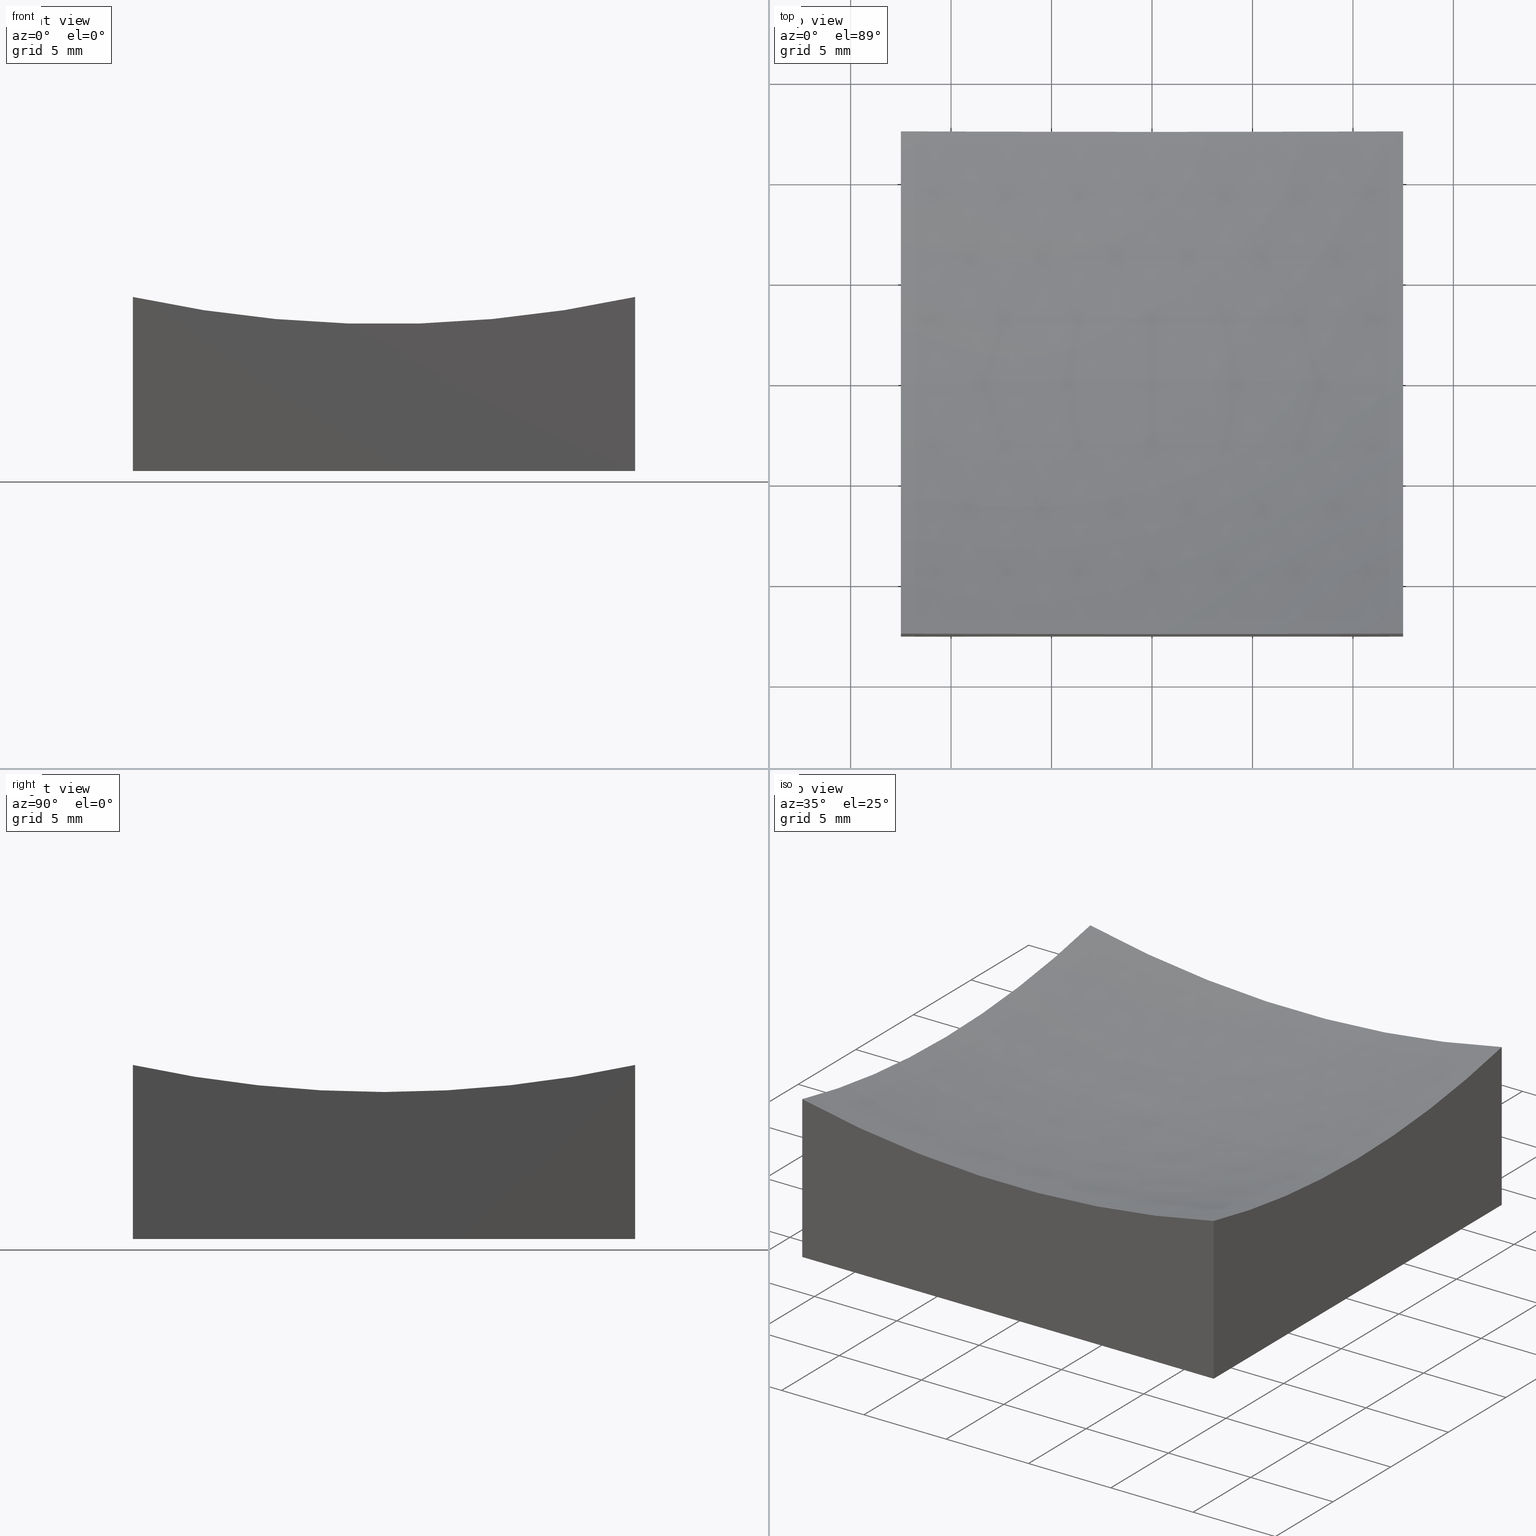
[diagram: canonical four-view strip — front | top / right | iso, engineering-drawing reading convention]
A machine part, canonical four-view strip (front | top / right | iso — engineering-drawing reading convention). The complete STEP part file that produces these views, byte-faithful:
ISO-10303-21;
HEADER;
FILE_DESCRIPTION (( 'STEP AP214' ),
    '1' );
FILE_NAME ('270033.STEP',
    '2020-06-05T05:57:28',
    ( '' ),
    ( '' ),
    'SwSTEP 2.0',
    'SolidWorks 2019',
    '' );
FILE_SCHEMA (( 'AUTOMOTIVE_DESIGN' ));
ENDSEC;

DATA;
#1 = DIRECTION ( 'NONE',  ( -0.0000000000000000000, -0.0000000000000000000, -1.000000000000000000 ) ) ;
#2 = FILL_AREA_STYLE ('',( #34 ) ) ;
#3 =( NAMED_UNIT ( * ) PLANE_ANGLE_UNIT ( ) SI_UNIT ( $, .RADIAN. ) );
#4 = DIRECTION ( 'NONE',  ( 1.000000000000000000, 1.387778780781445676E-16, -0.0000000000000000000 ) ) ;
#5 =( NAMED_UNIT ( * ) PLANE_ANGLE_UNIT ( ) SI_UNIT ( $, .RADIAN. ) );
#6 = APPLICATION_CONTEXT ( 'automotive_design' ) ;
#7 = ORIENTED_EDGE ( 'NONE', *, *, #137, .F. ) ;
#8 = EDGE_CURVE ( 'NONE', #87, #227, #148, .T. ) ;
#9 = SPHERICAL_SURFACE ( 'NONE', #64, 60.00000000000000000 ) ;
#10 = AXIS2_PLACEMENT_3D ( 'NONE', #235, #80, #108 ) ;
#11 = CARTESIAN_POINT ( 'NONE',  ( -12.50000000000000000, 12.50000000000000000, 0.0000000000000000000 ) ) ;
#12 = EDGE_LOOP ( 'NONE', ( #48, #184, #168, #128 ) ) ;
#13 = DIRECTION ( 'NONE',  ( -0.0000000000000000000, -0.0000000000000000000, -1.000000000000000000 ) ) ;
#14 = CIRCLE ( 'NONE', #10, 58.68347297152751452 ) ;
#15 = DIRECTION ( 'NONE',  ( 1.000000000000000000, 1.387778780781445676E-16, -0.0000000000000000000 ) ) ;
#16 = DIRECTION ( 'NONE',  ( 0.0000000000000000000, 0.0000000000000000000, 1.000000000000000000 ) ) ;
#17 = CARTESIAN_POINT ( 'NONE',  ( -12.49999999999999822, -1.734723475976808278E-15, 66.00000000000000000 ) ) ;
#18 = EDGE_CURVE ( 'NONE', #227, #67, #65, .T. ) ;
#19 = PRODUCT ( '270033', '270033', '', ( #73 ) ) ;
#20 = AXIS2_PLACEMENT_3D ( 'NONE', #154, #209, #134 ) ;
#21 =( LENGTH_UNIT ( ) NAMED_UNIT ( * ) SI_UNIT ( .MILLI., .METRE. ) );
#22 = FACE_OUTER_BOUND ( 'NONE', #12, .T. ) ;
#23 = DIRECTION ( 'NONE',  ( -0.0000000000000000000, 1.000000000000000000, 0.0000000000000000000 ) ) ;
#24 = MECHANICAL_DESIGN_GEOMETRIC_PRESENTATION_REPRESENTATION (  '', ( #241 ), #161 ) ;
#25 = CARTESIAN_POINT ( 'NONE',  ( 12.50000000000000000, 12.50000000000000000, 0.0000000000000000000 ) ) ;
#26 = PRESENTATION_LAYER_ASSIGNMENT (  '', '', ( #241 ) ) ;
#27 = ORIENTED_EDGE ( 'NONE', *, *, #44, .T. ) ;
#28 = ORIENTED_EDGE ( 'NONE', *, *, #200, .T. ) ;
#29 = FACE_OUTER_BOUND ( 'NONE', #89, .T. ) ;
#30 = ORIENTED_EDGE ( 'NONE', *, *, #92, .F. ) ;
#31 = CARTESIAN_POINT ( 'NONE',  ( 12.50000000000000000, 12.50000000000000000, 20.00000000000000000 ) ) ;
#32 = AXIS2_PLACEMENT_3D ( 'NONE', #160, #15, #171 ) ;
#33 = DIRECTION ( 'NONE',  ( 0.0000000000000000000, 0.0000000000000000000, -1.000000000000000000 ) ) ;
#34 = FILL_AREA_STYLE_COLOUR ( '', #109 ) ;
#35 = ADVANCED_FACE ( 'NONE', ( #29 ), #9, .F. ) ;
#36 = CARTESIAN_POINT ( 'NONE',  ( 12.50000000000000000, 12.50000000000000000, 20.00000000000000000 ) ) ;
#37 = DIRECTION ( 'NONE',  ( -0.0000000000000000000, -0.0000000000000000000, -1.000000000000000000 ) ) ;
#38 = APPLICATION_CONTEXT ( 'automotive_design' ) ;
#39 = CLOSED_SHELL ( 'NONE', ( #35, #53, #243, #88, #218, #149, #226 ) ) ;
#40 = CARTESIAN_POINT ( 'NONE',  ( 12.50000000000000355, -12.50000000000000000, 0.0000000000000000000 ) ) ;
#41 = CARTESIAN_POINT ( 'NONE',  ( -12.49999999999999645, -12.50000000000000000, 0.0000000000000000000 ) ) ;
#42 = FACE_OUTER_BOUND ( 'NONE', #236, .T. ) ;
#43 = VECTOR ( 'NONE', #111, 1000.000000000000000 ) ;
#44 = EDGE_CURVE ( 'NONE', #87, #223, #164, .T. ) ;
#45 = FACE_OUTER_BOUND ( 'NONE', #144, .T. ) ;
#46 = CARTESIAN_POINT ( 'NONE',  ( 12.50000000000000000, 12.50000000000000000, 0.0000000000000000000 ) ) ;
#47 = ORIENTED_EDGE ( 'NONE', *, *, #18, .F. ) ;
#48 = ORIENTED_EDGE ( 'NONE', *, *, #107, .F. ) ;
#49 = AXIS2_PLACEMENT_3D ( 'NONE', #17, #234, #247 ) ;
#50 = ORIENTED_EDGE ( 'NONE', *, *, #44, .F. ) ;
#51 = LINE ( 'NONE', #77, #166 ) ;
#52 = FILL_AREA_STYLE ('',( #159 ) ) ;
#53 = ADVANCED_FACE ( 'NONE', ( #45 ), #242, .T. ) ;
#54 = STYLED_ITEM ( 'NONE', ( #71 ), #224 ) ;
#55 = FACE_OUTER_BOUND ( 'NONE', #225, .T. ) ;
#56 = UNCERTAINTY_MEASURE_WITH_UNIT (LENGTH_MEASURE( 1.000000000000000082E-05 ), #21, 'distance_accuracy_value', 'NONE');
#57 = CARTESIAN_POINT ( 'NONE',  ( 8.278698348036925657E-15, 0.0000000000000000000, 6.000000000000005329 ) ) ;
#58 =( LENGTH_UNIT ( ) NAMED_UNIT ( * ) SI_UNIT ( .MILLI., .METRE. ) );
#59 = DIRECTION ( 'NONE',  ( 1.000000000000000000, 1.387778780781445676E-16, -0.0000000000000000000 ) ) ;
#60 = CIRCLE ( 'NONE', #202, 58.68347297152751452 ) ;
#61 = ORIENTED_EDGE ( 'NONE', *, *, #62, .T. ) ;
#62 = EDGE_CURVE ( 'NONE', #245, #238, #185, .T. ) ;
#63 = AXIS2_PLACEMENT_3D ( 'NONE', #192, #211, #78 ) ;
#64 = AXIS2_PLACEMENT_3D ( 'NONE', #94, #110, #126 ) ;
#65 = LINE ( 'NONE', #46, #43 ) ;
#66 = DIRECTION ( 'NONE',  ( 0.0000000000000000000, 1.000000000000000000, 0.0000000000000000000 ) ) ;
#67 = VERTEX_POINT ( 'NONE', #40 ) ;
#68 = ORIENTED_EDGE ( 'NONE', *, *, #84, .F. ) ;
#69 = PRODUCT_DEFINITION ( 'δ֪', '', #117, #91 ) ;
#70 =( GEOMETRIC_REPRESENTATION_CONTEXT ( 3 ) GLOBAL_UNCERTAINTY_ASSIGNED_CONTEXT ( ( #188 ) ) GLOBAL_UNIT_ASSIGNED_CONTEXT ( ( #219, #3, #139 ) ) REPRESENTATION_CONTEXT ( 'NONE', 'WORKASPACE' ) );
#71 = PRESENTATION_STYLE_ASSIGNMENT (( #233 ) ) ;
#72 = LINE ( 'NONE', #74, #86 ) ;
#73 = PRODUCT_CONTEXT ( 'NONE', #6, 'mechanical' ) ;
#74 = CARTESIAN_POINT ( 'NONE',  ( -12.49999999999999645, -12.50000000000000000, 20.00000000000000000 ) ) ;
#75 = SURFACE_STYLE_USAGE ( .BOTH. , #177 ) ;
#76 = AXIS2_PLACEMENT_3D ( 'NONE', #217, #16, #172 ) ;
#77 = CARTESIAN_POINT ( 'NONE',  ( -12.50000000000000000, 12.50000000000000000, 20.00000000000000000 ) ) ;
#78 = DIRECTION ( 'NONE',  ( -1.478034093873817962E-16, 1.000000000000000000, 0.0000000000000000000 ) ) ;
#79 =( NAMED_UNIT ( * ) SI_UNIT ( $, .STERADIAN. ) SOLID_ANGLE_UNIT ( ) );
#80 = DIRECTION ( 'NONE',  ( 0.0000000000000000000, 1.000000000000000000, 0.0000000000000000000 ) ) ;
#81 = COLOUR_RGB ( '',1.000000000000000000, 1.000000000000000000, 1.000000000000000000 ) ;
#82 = DIRECTION ( 'NONE',  ( -1.387778780781445676E-16, 1.000000000000000000, 0.0000000000000000000 ) ) ;
#83 = CARTESIAN_POINT ( 'NONE',  ( 12.50000000000000355, -12.50000000000000000, 8.663275294101428159 ) ) ;
#84 = EDGE_CURVE ( 'NONE', #201, #187, #60, .T. ) ;
#85 = ORIENTED_EDGE ( 'NONE', *, *, #137, .T. ) ;
#86 = VECTOR ( 'NONE', #1, 1000.000000000000000 ) ;
#87 = VERTEX_POINT ( 'NONE', #190 ) ;
#88 = ADVANCED_FACE ( 'NONE', ( #22 ), #118, .F. ) ;
#89 = EDGE_LOOP ( 'NONE', ( #151, #28, #68, #205, #199 ) ) ;
#90 = ORIENTED_EDGE ( 'NONE', *, *, #102, .T. ) ;
#91 = PRODUCT_DEFINITION_CONTEXT ( 'detailed design', #38, 'design' ) ;
#92 = EDGE_CURVE ( 'NONE', #229, #240, #206, .T. ) ;
#93 = ORIENTED_EDGE ( 'NONE', *, *, #181, .T. ) ;
#94 = CARTESIAN_POINT ( 'NONE',  ( 8.082668874372532400E-15, 0.0000000000000000000, 66.00000000000000000 ) ) ;
#95 = AXIS2_PLACEMENT_3D ( 'NONE', #36, #197, #119 ) ;
#96 = SURFACE_SIDE_STYLE ('',( #194 ) ) ;
#97 = DIRECTION ( 'NONE',  ( 1.000000000000000000, 0.0000000000000000000, 0.0000000000000000000 ) ) ;
#98 = SHAPE_DEFINITION_REPRESENTATION ( #103, #193 ) ;
#99 = APPLICATION_PROTOCOL_DEFINITION ( 'draft international standard', 'automotive_design', 1998, #6 ) ;
#100 = AXIS2_PLACEMENT_3D ( 'NONE', #136, #33, #251 ) ;
#101 = CARTESIAN_POINT ( 'NONE',  ( -12.49999999999999822, -1.734723475976808278E-15, 66.00000000000000000 ) ) ;
#102 = EDGE_CURVE ( 'NONE', #245, #227, #153, .T. ) ;
#103 = PRODUCT_DEFINITION_SHAPE ( 'NONE', 'NONE',  #69 ) ;
#104 = CARTESIAN_POINT ( 'NONE',  ( 12.50000000000000355, -12.50000000000000000, 20.00000000000000000 ) ) ;
#105 = CARTESIAN_POINT ( 'NONE',  ( 12.50000000000000178, 0.0000000000000000000, 7.316527028472495253 ) ) ;
#106 = CIRCLE ( 'NONE', #121, 60.00000000000000000 ) ;
#107 = EDGE_CURVE ( 'NONE', #229, #67, #116, .T. ) ;
#108 = DIRECTION ( 'NONE',  ( 0.0000000000000000000, 0.0000000000000000000, 1.000000000000000000 ) ) ;
#109 = COLOUR_RGB ( '',1.000000000000000000, 1.000000000000000000, 1.000000000000000000 ) ;
#110 = DIRECTION ( 'NONE',  ( -0.0000000000000000000, 1.000000000000000000, 0.0000000000000000000 ) ) ;
#111 = DIRECTION ( 'NONE',  ( 1.387778780781445676E-16, -1.000000000000000000, 0.0000000000000000000 ) ) ;
#112 = EDGE_CURVE ( 'NONE', #240, #87, #250, .T. ) ;
#113 = DIRECTION ( 'NONE',  ( 0.0000000000000000000, 0.0000000000000000000, 1.000000000000000000 ) ) ;
#114 = ORIENTED_EDGE ( 'NONE', *, *, #158, .T. ) ;
#115 = ORIENTED_EDGE ( 'NONE', *, *, #107, .T. ) ;
#116 = LINE ( 'NONE', #104, #216 ) ;
#117 = PRODUCT_DEFINITION_FORMATION_WITH_SPECIFIED_SOURCE ( '�κ�', '', #19, .NOT_KNOWN. ) ;
#118 = PLANE ( 'NONE',  #20 ) ;
#119 = DIRECTION ( 'NONE',  ( -1.387778780781445676E-16, 1.000000000000000000, 0.0000000000000000000 ) ) ;
#120 = CARTESIAN_POINT ( 'NONE',  ( -12.49999999999999645, 1.530808498934191916E-15, 7.316527028472495253 ) ) ;
#121 = AXIS2_PLACEMENT_3D ( 'NONE', #133, #248, #156 ) ;
#122 = DIRECTION ( 'NONE',  ( 1.224646799147353207E-16, 1.000000000000000000, -7.098687467539885897E-33 ) ) ;
#123 = DIRECTION ( 'NONE',  ( 1.000000000000000000, 0.0000000000000000000, 0.0000000000000000000 ) ) ;
#124 = VERTEX_POINT ( 'NONE', #57 ) ;
#125 = AXIS2_PLACEMENT_3D ( 'NONE', #183, #66, #150 ) ;
#126 = DIRECTION ( 'NONE',  ( 1.000000000000000000, 0.0000000000000000000, 0.0000000000000000000 ) ) ;
#127 = EDGE_CURVE ( 'NONE', #238, #67, #195, .T. ) ;
#128 = ORIENTED_EDGE ( 'NONE', *, *, #127, .T. ) ;
#129 = PRODUCT_RELATED_PRODUCT_CATEGORY ( 'part', '', ( #19 ) ) ;
#130 = AXIS2_PLACEMENT_3D ( 'NONE', #237, #4, #82 ) ;
#131 = ORIENTED_EDGE ( 'NONE', *, *, #112, .F. ) ;
#132 = EDGE_LOOP ( 'NONE', ( #90, #208, #152, #165 ) ) ;
#133 = CARTESIAN_POINT ( 'NONE',  ( 8.082668874372532400E-15, 0.0000000000000000000, 66.00000000000000000 ) ) ;
#134 = DIRECTION ( 'NONE',  ( 0.0000000000000000000, -0.0000000000000000000, 1.000000000000000000 ) ) ;
#135 = APPLICATION_PROTOCOL_DEFINITION ( 'draft international standard', 'automotive_design', 1998, #38 ) ;
#136 = CARTESIAN_POINT ( 'NONE',  ( 0.0000000000000000000, 0.0000000000000000000, 0.0000000000000000000 ) ) ;
#137 = EDGE_CURVE ( 'NONE', #223, #245, #51, .T. ) ;
#138 = CARTESIAN_POINT ( 'NONE',  ( -12.49999999999999645, -12.50000000000000000, 0.0000000000000000000 ) ) ;
#139 =( NAMED_UNIT ( * ) SI_UNIT ( $, .STERADIAN. ) SOLID_ANGLE_UNIT ( ) );
#140 = PLANE ( 'NONE',  #100 ) ;
#141 = AXIS2_PLACEMENT_3D ( 'NONE', #167, #246, #113 ) ;
#142 = CARTESIAN_POINT ( 'NONE',  ( 8.082668874372532400E-15, 0.0000000000000000000, 66.00000000000000000 ) ) ;
#143 = PLANE ( 'NONE',  #130 ) ;
#144 = EDGE_LOOP ( 'NONE', ( #50, #186, #147, #7 ) ) ;
#145 = VECTOR ( 'NONE', #214, 1000.000000000000000 ) ;
#146 = ORIENTED_EDGE ( 'NONE', *, *, #8, .F. ) ;
#147 = ORIENTED_EDGE ( 'NONE', *, *, #102, .F. ) ;
#148 = LINE ( 'NONE', #31, #180 ) ;
#149 = ADVANCED_FACE ( 'NONE', ( #176 ), #140, .T. ) ;
#150 = DIRECTION ( 'NONE',  ( 0.0000000000000000000, -0.0000000000000000000, 1.000000000000000000 ) ) ;
#151 = ORIENTED_EDGE ( 'NONE', *, *, #181, .F. ) ;
#152 = ORIENTED_EDGE ( 'NONE', *, *, #127, .F. ) ;
#153 = LINE ( 'NONE', #174, #196 ) ;
#154 = CARTESIAN_POINT ( 'NONE',  ( -12.49999999999999645, -12.50000000000000000, 20.00000000000000000 ) ) ;
#155 = SURFACE_STYLE_FILL_AREA ( #2 ) ;
#156 = DIRECTION ( 'NONE',  ( 0.0000000000000000000, 0.0000000000000000000, -1.000000000000000000 ) ) ;
#157 = PRESENTATION_STYLE_ASSIGNMENT (( #75 ) ) ;
#158 = EDGE_CURVE ( 'NONE', #187, #223, #175, .T. ) ;
#159 = FILL_AREA_STYLE_COLOUR ( '', #81 ) ;
#160 = CARTESIAN_POINT ( 'NONE',  ( 12.50000000000000178, 1.734723475976806306E-15, 66.00000000000000000 ) ) ;
#161 =( GEOMETRIC_REPRESENTATION_CONTEXT ( 3 ) GLOBAL_UNCERTAINTY_ASSIGNED_CONTEXT ( ( #249 ) ) GLOBAL_UNIT_ASSIGNED_CONTEXT ( ( #58, #213, #79 ) ) REPRESENTATION_CONTEXT ( 'NONE', 'WORKASPACE' ) );
#162 = CARTESIAN_POINT ( 'NONE',  ( -12.50000000000000000, 12.50000000000000000, 0.0000000000000000000 ) ) ;
#163 = FACE_OUTER_BOUND ( 'NONE', #169, .T. ) ;
#164 = CIRCLE ( 'NONE', #141, 58.68347297152751452 ) ;
#165 = ORIENTED_EDGE ( 'NONE', *, *, #62, .F. ) ;
#166 = VECTOR ( 'NONE', #37, 1000.000000000000000 ) ;
#167 = CARTESIAN_POINT ( 'NONE',  ( 8.082668874372532400E-15, 12.50000000000000000, 66.00000000000000000 ) ) ;
#168 = ORIENTED_EDGE ( 'NONE', *, *, #191, .T. ) ;
#169 = EDGE_LOOP ( 'NONE', ( #222, #203, #114, #85, #61 ) ) ;
#170 = MECHANICAL_DESIGN_GEOMETRIC_PRESENTATION_REPRESENTATION (  '', ( #54 ), #221 ) ;
#171 = DIRECTION ( 'NONE',  ( -1.478034093873817962E-16, 1.000000000000000000, 0.0000000000000000000 ) ) ;
#172 = DIRECTION ( 'NONE',  ( 1.000000000000000000, 0.0000000000000000000, 0.0000000000000000000 ) ) ;
#173 = DIRECTION ( 'NONE',  ( -1.478034093873817962E-16, 1.000000000000000000, 0.0000000000000000000 ) ) ;
#174 = CARTESIAN_POINT ( 'NONE',  ( -12.50000000000000000, 12.50000000000000000, 0.0000000000000000000 ) ) ;
#175 = CIRCLE ( 'NONE', #49, 58.68347297152751452 ) ;
#176 = FACE_OUTER_BOUND ( 'NONE', #132, .T. ) ;
#177 = SURFACE_SIDE_STYLE ('',( #155 ) ) ;
#178 = CARTESIAN_POINT ( 'NONE',  ( -12.50000000000000000, 12.50000000000000000, 8.663275294101428159 ) ) ;
#179 = SPHERICAL_SURFACE ( 'NONE', #189, 60.00000000000000000 ) ;
#180 = VECTOR ( 'NONE', #13, 1000.000000000000000 ) ;
#181 = EDGE_CURVE ( 'NONE', #124, #240, #106, .T. ) ;
#182 = CIRCLE ( 'NONE', #228, 60.00000000000000000 ) ;
#183 = CARTESIAN_POINT ( 'NONE',  ( -12.50000000000000000, 12.50000000000000000, 20.00000000000000000 ) ) ;
#184 = ORIENTED_EDGE ( 'NONE', *, *, #252, .T. ) ;
#185 = LINE ( 'NONE', #11, #210 ) ;
#186 = ORIENTED_EDGE ( 'NONE', *, *, #8, .T. ) ;
#187 = VERTEX_POINT ( 'NONE', #120 ) ;
#188 = UNCERTAINTY_MEASURE_WITH_UNIT (LENGTH_MEASURE( 1.000000000000000082E-05 ), #219, 'distance_accuracy_value', 'NONE');
#189 = AXIS2_PLACEMENT_3D ( 'NONE', #142, #23, #123 ) ;
#190 = CARTESIAN_POINT ( 'NONE',  ( 12.50000000000000000, 12.50000000000000000, 8.663275294101428159 ) ) ;
#191 = EDGE_CURVE ( 'NONE', #201, #238, #72, .T. ) ;
#192 = CARTESIAN_POINT ( 'NONE',  ( 12.50000000000000178, 1.734723475976806306E-15, 66.00000000000000000 ) ) ;
#193 = ADVANCED_BREP_SHAPE_REPRESENTATION ( '270033', ( #224, #76 ), #70 ) ;
#194 = SURFACE_STYLE_FILL_AREA ( #52 ) ;
#195 = LINE ( 'NONE', #138, #145 ) ;
#196 = VECTOR ( 'NONE', #97, 1000.000000000000000 ) ;
#197 = DIRECTION ( 'NONE',  ( 1.000000000000000000, 1.387778780781445676E-16, -0.0000000000000000000 ) ) ;
#198 =( NAMED_UNIT ( * ) SI_UNIT ( $, .STERADIAN. ) SOLID_ANGLE_UNIT ( ) );
#199 = ORIENTED_EDGE ( 'NONE', *, *, #92, .T. ) ;
#200 = EDGE_CURVE ( 'NONE', #124, #187, #182, .T. ) ;
#201 = VERTEX_POINT ( 'NONE', #232 ) ;
#202 = AXIS2_PLACEMENT_3D ( 'NONE', #101, #59, #173 ) ;
#203 = ORIENTED_EDGE ( 'NONE', *, *, #84, .T. ) ;
#204 = ORIENTED_EDGE ( 'NONE', *, *, #112, .T. ) ;
#205 = ORIENTED_EDGE ( 'NONE', *, *, #252, .F. ) ;
#206 = CIRCLE ( 'NONE', #63, 58.68347297152751452 ) ;
#207 = ORIENTED_EDGE ( 'NONE', *, *, #158, .F. ) ;
#208 = ORIENTED_EDGE ( 'NONE', *, *, #18, .T. ) ;
#209 = DIRECTION ( 'NONE',  ( 0.0000000000000000000, 1.000000000000000000, 0.0000000000000000000 ) ) ;
#210 = VECTOR ( 'NONE', #244, 1000.000000000000000 ) ;
#211 = DIRECTION ( 'NONE',  ( 1.000000000000000000, 1.387778780781445676E-16, -0.0000000000000000000 ) ) ;
#212 = PLANE ( 'NONE',  #95 ) ;
#213 =( NAMED_UNIT ( * ) PLANE_ANGLE_UNIT ( ) SI_UNIT ( $, .RADIAN. ) );
#214 = DIRECTION ( 'NONE',  ( 1.000000000000000000, 0.0000000000000000000, 0.0000000000000000000 ) ) ;
#215 = CARTESIAN_POINT ( 'NONE',  ( 8.082668874372532400E-15, 0.0000000000000000000, 66.00000000000000000 ) ) ;
#216 = VECTOR ( 'NONE', #230, 1000.000000000000000 ) ;
#217 = CARTESIAN_POINT ( 'NONE',  ( 0.0000000000000000000, 0.0000000000000000000, 0.0000000000000000000 ) ) ;
#218 = ADVANCED_FACE ( 'NONE', ( #55 ), #212, .T. ) ;
#219 =( LENGTH_UNIT ( ) NAMED_UNIT ( * ) SI_UNIT ( .MILLI., .METRE. ) );
#220 = ORIENTED_EDGE ( 'NONE', *, *, #200, .F. ) ;
#221 =( GEOMETRIC_REPRESENTATION_CONTEXT ( 3 ) GLOBAL_UNCERTAINTY_ASSIGNED_CONTEXT ( ( #56 ) ) GLOBAL_UNIT_ASSIGNED_CONTEXT ( ( #21, #5, #198 ) ) REPRESENTATION_CONTEXT ( 'NONE', 'WORKASPACE' ) );
#222 = ORIENTED_EDGE ( 'NONE', *, *, #191, .F. ) ;
#223 = VERTEX_POINT ( 'NONE', #178 ) ;
#224 = MANIFOLD_SOLID_BREP ( '�г�-��ת2', #39 ) ;
#225 = EDGE_LOOP ( 'NONE', ( #30, #115, #47, #146, #131 ) ) ;
#226 = ADVANCED_FACE ( 'NONE', ( #42 ), #179, .F. ) ;
#227 = VERTEX_POINT ( 'NONE', #25 ) ;
#228 = AXIS2_PLACEMENT_3D ( 'NONE', #215, #122, #231 ) ;
#229 = VERTEX_POINT ( 'NONE', #83 ) ;
#230 = DIRECTION ( 'NONE',  ( -0.0000000000000000000, -0.0000000000000000000, -1.000000000000000000 ) ) ;
#231 = DIRECTION ( 'NONE',  ( -1.000000000000000000, 1.224646799147352961E-16, 0.0000000000000000000 ) ) ;
#232 = CARTESIAN_POINT ( 'NONE',  ( -12.49999999999999645, -12.50000000000000000, 8.663275294101428159 ) ) ;
#233 = SURFACE_STYLE_USAGE ( .BOTH. , #96 ) ;
#234 = DIRECTION ( 'NONE',  ( 1.000000000000000000, 1.387778780781445676E-16, -0.0000000000000000000 ) ) ;
#235 = CARTESIAN_POINT ( 'NONE',  ( 8.082668874372532400E-15, -12.50000000000000000, 66.00000000000000000 ) ) ;
#236 = EDGE_LOOP ( 'NONE', ( #220, #93, #204, #27, #207 ) ) ;
#237 = CARTESIAN_POINT ( 'NONE',  ( -12.50000000000000000, 12.50000000000000000, 20.00000000000000000 ) ) ;
#238 = VERTEX_POINT ( 'NONE', #41 ) ;
#239 = PRESENTATION_LAYER_ASSIGNMENT (  '', '', ( #54 ) ) ;
#240 = VERTEX_POINT ( 'NONE', #105 ) ;
#241 = STYLED_ITEM ( 'NONE', ( #157 ), #193 ) ;
#242 = PLANE ( 'NONE',  #125 ) ;
#243 = ADVANCED_FACE ( 'NONE', ( #163 ), #143, .F. ) ;
#244 = DIRECTION ( 'NONE',  ( 1.387778780781445676E-16, -1.000000000000000000, 0.0000000000000000000 ) ) ;
#245 = VERTEX_POINT ( 'NONE', #162 ) ;
#246 = DIRECTION ( 'NONE',  ( 0.0000000000000000000, 1.000000000000000000, 0.0000000000000000000 ) ) ;
#247 = DIRECTION ( 'NONE',  ( -1.478034093873817962E-16, 1.000000000000000000, 0.0000000000000000000 ) ) ;
#248 = DIRECTION ( 'NONE',  ( 0.0000000000000000000, -1.000000000000000000, -0.0000000000000000000 ) ) ;
#249 = UNCERTAINTY_MEASURE_WITH_UNIT (LENGTH_MEASURE( 1.000000000000000082E-05 ), #58, 'distance_accuracy_value', 'NONE');
#250 = CIRCLE ( 'NONE', #32, 58.68347297152751452 ) ;
#251 = DIRECTION ( 'NONE',  ( -1.000000000000000000, 0.0000000000000000000, -0.0000000000000000000 ) ) ;
#252 = EDGE_CURVE ( 'NONE', #229, #201, #14, .T. ) ;
ENDSEC;
END-ISO-10303-21;
